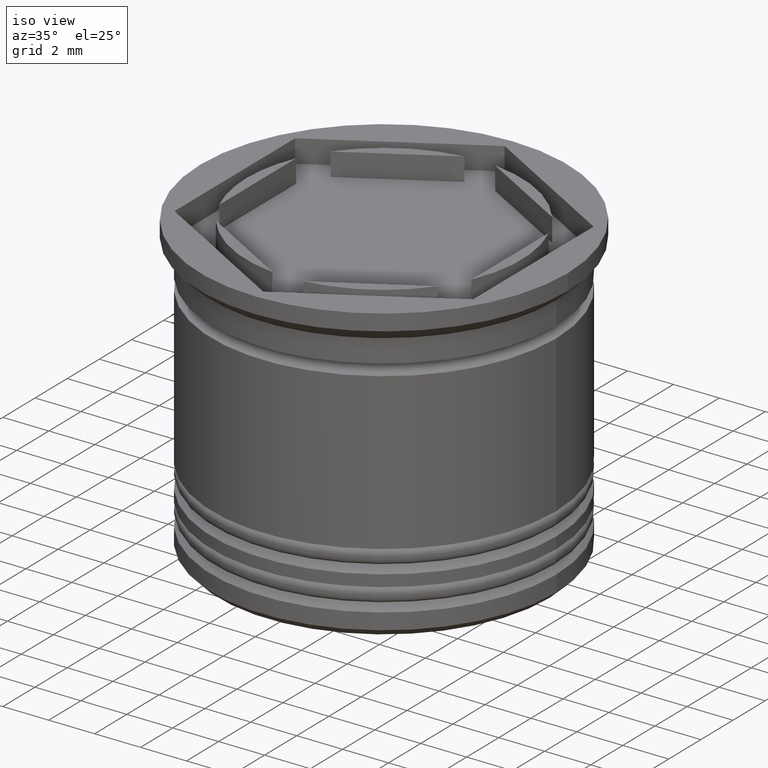
[diagram: clean part render]
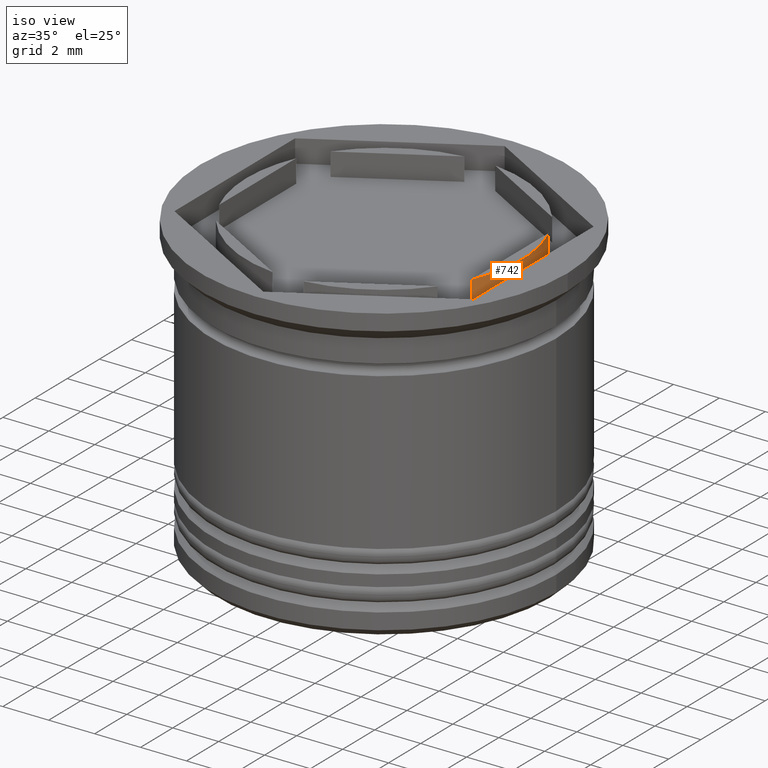
[diagram: same view with one face highlighted and labeled with its STEP entity id]
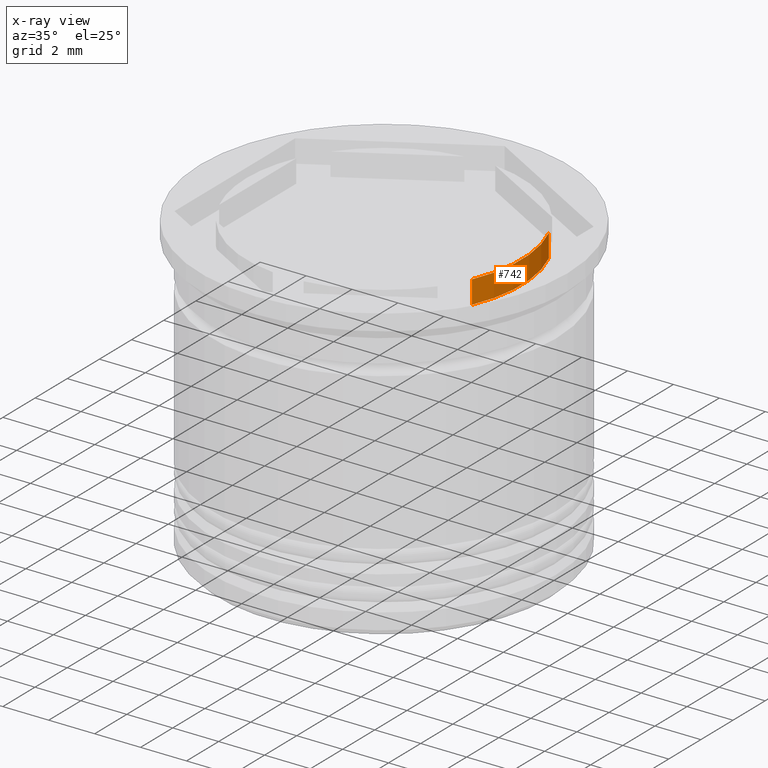
[diagram: x-ray of the same camera — body ghosted, the highlighted face saturated]
A machine part, iso view. The second image highlights one B-rep face of the part: STEP entity #742.
The next image is the same camera in x-ray: the body ghosted, the highlighted face saturated — about 0% of this face is hidden behind the body in this view.
In plain terms, the highlighted cylindrical surface (partial cylindrical patch) has radius 6 mm, axis along (-0, -0, -1).
Its self-contained STEP definition (entity closure, byte-faithful):
#46 = ORIENTED_EDGE ( 'NONE', *, *, #121, .F. ) ;
#81 = CIRCLE ( 'NONE', #275, 6.000000000000000888 ) ;
#91 = EDGE_CURVE ( 'NONE', #1911, #399, #693, .T. ) ;
#121 = EDGE_CURVE ( 'NONE', #128, #399, #81, .T. ) ;
#128 = VERTEX_POINT ( 'NONE', #295 ) ;
#150 = DIRECTION ( 'NONE',  ( 1.000000000000000000, 0.000000000000000000, 0.000000000000000000 ) ) ;
#177 = ORIENTED_EDGE ( 'NONE', *, *, #539, .T. ) ;
#253 = ORIENTED_EDGE ( 'NONE', *, *, #91, .T. ) ;
#273 = CARTESIAN_POINT ( 'NONE',  ( 5.500000000000000888, -2.397915761656362221, -1.000000000000000888 ) ) ;
#275 = AXIS2_PLACEMENT_3D ( 'NONE', #276, #1817, #150 ) ;
#276 = CARTESIAN_POINT ( 'NONE',  ( 0.000000000000000000, 0.000000000000000000, 0.000000000000000000 ) ) ;
#295 = CARTESIAN_POINT ( 'NONE',  ( 5.500000000000000888, -2.397915761656362221, 0.000000000000000000 ) ) ;
#340 = AXIS2_PLACEMENT_3D ( 'NONE', #645, #1867, #1857 ) ;
#399 = VERTEX_POINT ( 'NONE', #1990 ) ;
#523 = DIRECTION ( 'NONE',  ( 0.000000000000000000, 0.000000000000000000, 1.000000000000000000 ) ) ;
#539 = EDGE_CURVE ( 'NONE', #1892, #1911, #1492, .T. ) ;
#632 = AXIS2_PLACEMENT_3D ( 'NONE', #1927, #523, #1773 ) ;
#645 = CARTESIAN_POINT ( 'NONE',  ( 0.000000000000000000, 0.000000000000000000, 16.97056274847714263 ) ) ;
#693 = LINE ( 'NONE', #1780, #1756 ) ;
#742 = ADVANCED_FACE ( 'NONE', ( #1070 ), #972, .T. ) ;
#749 = CARTESIAN_POINT ( 'NONE',  ( 5.500000000000000888, 2.397915761656360445, -1.000000000000000888 ) ) ;
#761 = DIRECTION ( 'NONE',  ( -0.000000000000000000, -0.000000000000000000, -1.000000000000000000 ) ) ;
#805 = ORIENTED_EDGE ( 'NONE', *, *, #1928, .T. ) ;
#918 = LINE ( 'NONE', #1510, #1673 ) ;
#972 = CYLINDRICAL_SURFACE ( 'NONE', #340, 6.000000000000000888 ) ;
#990 = EDGE_LOOP ( 'NONE', ( #46, #805, #177, #253 ) ) ;
#1070 = FACE_OUTER_BOUND ( 'NONE', #990, .T. ) ;
#1294 = DIRECTION ( 'NONE',  ( 0.000000000000000000, 0.000000000000000000, 1.000000000000000000 ) ) ;
#1492 = CIRCLE ( 'NONE', #632, 6.000000000000000888 ) ;
#1510 = CARTESIAN_POINT ( 'NONE',  ( 5.500000000000000888, -2.397915761656362221, 16.97056274847714263 ) ) ;
#1673 = VECTOR ( 'NONE', #761, 1000.000000000000000 ) ;
#1756 = VECTOR ( 'NONE', #1294, 1000.000000000000000 ) ;
#1773 = DIRECTION ( 'NONE',  ( 1.000000000000000000, 0.000000000000000000, 0.000000000000000000 ) ) ;
#1780 = CARTESIAN_POINT ( 'NONE',  ( 5.500000000000000888, 2.397915761656360445, 16.97056274847714263 ) ) ;
#1817 = DIRECTION ( 'NONE',  ( -0.000000000000000000, -0.000000000000000000, 1.000000000000000000 ) ) ;
#1857 = DIRECTION ( 'NONE',  ( -1.000000000000000000, 0.000000000000000000, 0.000000000000000000 ) ) ;
#1867 = DIRECTION ( 'NONE',  ( -0.000000000000000000, -0.000000000000000000, -1.000000000000000000 ) ) ;
#1892 = VERTEX_POINT ( 'NONE', #273 ) ;
#1911 = VERTEX_POINT ( 'NONE', #749 ) ;
#1927 = CARTESIAN_POINT ( 'NONE',  ( 0.000000000000000000, 0.000000000000000000, -1.000000000000000000 ) ) ;
#1928 = EDGE_CURVE ( 'NONE', #128, #1892, #918, .T. ) ;
#1990 = CARTESIAN_POINT ( 'NONE',  ( 5.500000000000001776, 2.397915761656360445, 0.000000000000000000 ) ) ;